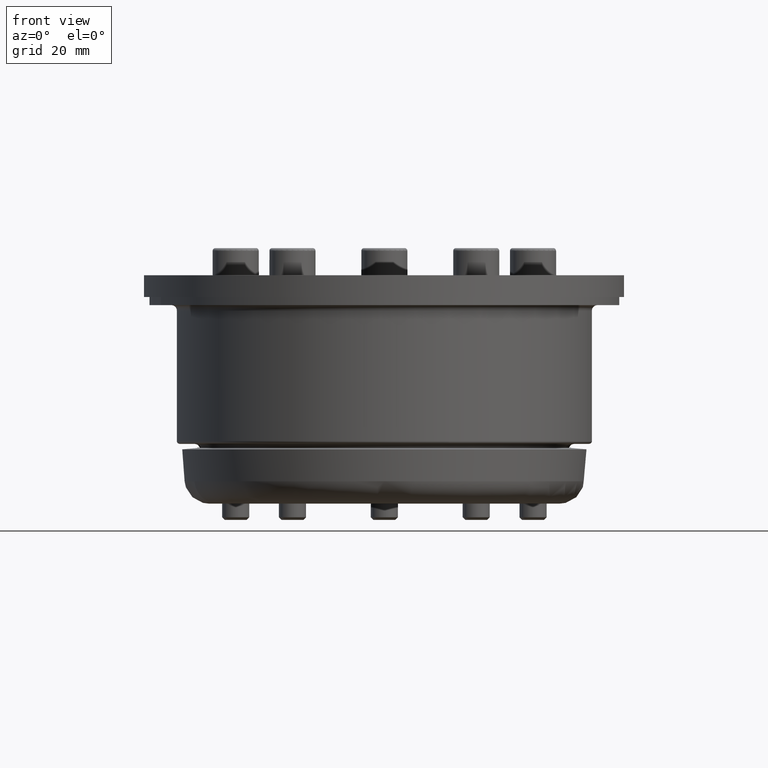
[diagram: clean part render]
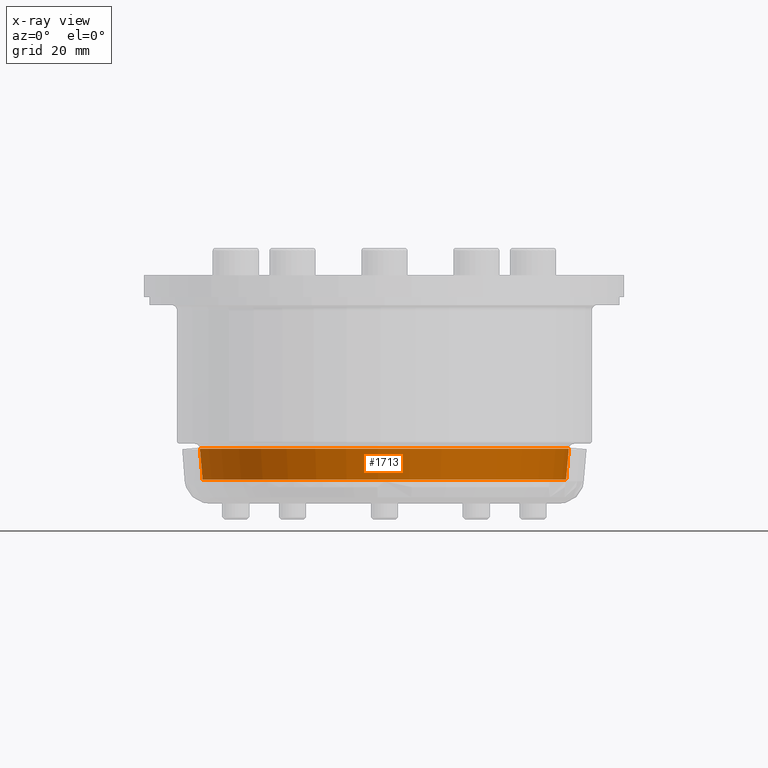
[diagram: x-ray — body ghosted, one internal face saturated and labeled with its STEP entity id]
A machine part, front view, then the same camera in x-ray: the body is ghosted and one INTERNAL B-rep face — a face not visible from any outside direction — is saturated and labeled: STEP entity #1713.
In plain terms, the highlighted conical surface has half-angle 5 deg.
Its self-contained STEP definition (entity closure, byte-faithful):
#80=CONICAL_SURFACE('',#1983,33.6981731800148,0.0872664625997158);
#107=LINE('',#2969,#178);
#178=VECTOR('',#2375,33.6981731800148);
#372=FACE_OUTER_BOUND('',#462,.T.);
#462=EDGE_LOOP('',(#1332,#1333,#1334,#1335,#1336,#1337,#1338));
#645=CIRCLE('',#1981,33.9463921441627);
#646=CIRCLE('',#1982,33.9463921441627);
#647=CIRCLE('',#1984,33.4461416461411);
#648=CIRCLE('',#1985,33.4461416461411);
#649=CIRCLE('',#1986,33.4461416461411);
#815=VERTEX_POINT('',#2962);
#816=VERTEX_POINT('',#2964);
#817=VERTEX_POINT('',#2968);
#818=VERTEX_POINT('',#2970);
#819=VERTEX_POINT('',#2972);
#1016=EDGE_CURVE('',#815,#816,#645,.T.);
#1017=EDGE_CURVE('',#816,#815,#646,.T.);
#1018=EDGE_CURVE('',#816,#817,#107,.T.);
#1019=EDGE_CURVE('',#818,#817,#647,.T.);
#1020=EDGE_CURVE('',#819,#818,#648,.T.);
#1021=EDGE_CURVE('',#817,#819,#649,.T.);
#1332=ORIENTED_EDGE('',*,*,#1017,.F.);
#1333=ORIENTED_EDGE('',*,*,#1018,.T.);
#1334=ORIENTED_EDGE('',*,*,#1019,.F.);
#1335=ORIENTED_EDGE('',*,*,#1020,.F.);
#1336=ORIENTED_EDGE('',*,*,#1021,.F.);
#1337=ORIENTED_EDGE('',*,*,#1018,.F.);
#1338=ORIENTED_EDGE('',*,*,#1016,.F.);
#1713=ADVANCED_FACE('',(#372),#80,.T.);
#1981=AXIS2_PLACEMENT_3D('',#2965,#2369,#2370);
#1982=AXIS2_PLACEMENT_3D('',#2966,#2371,#2372);
#1983=AXIS2_PLACEMENT_3D('',#2967,#2373,#2374);
#1984=AXIS2_PLACEMENT_3D('',#2971,#2376,#2377);
#1985=AXIS2_PLACEMENT_3D('',#2973,#2378,#2379);
#1986=AXIS2_PLACEMENT_3D('',#2974,#2380,#2381);
#2369=DIRECTION('center_axis',(0.,0.,1.));
#2370=DIRECTION('ref_axis',(6.12323399573677E-17,1.,0.));
#2371=DIRECTION('center_axis',(0.,0.,1.));
#2372=DIRECTION('ref_axis',(6.12323399573677E-17,1.,0.));
#2373=DIRECTION('center_axis',(0.,0.,1.));
#2374=DIRECTION('ref_axis',(0.,1.,0.));
#2375=DIRECTION('',(1.06735001383229E-17,0.0871557427476575,-0.996194698091746));
#2376=DIRECTION('center_axis',(0.,0.,-1.));
#2377=DIRECTION('ref_axis',(0.,-1.,0.));
#2378=DIRECTION('center_axis',(0.,0.,-1.));
#2379=DIRECTION('ref_axis',(0.,-1.,0.));
#2380=DIRECTION('center_axis',(0.,0.,-1.));
#2381=DIRECTION('ref_axis',(0.,-1.,0.));
#2962=CARTESIAN_POINT('',(33.9463921441627,-4.15723404819497E-15,7.08715574274768));
#2964=CARTESIAN_POINT('',(0.,-33.9463921441627,7.08715574274768));
#2965=CARTESIAN_POINT('Origin',(-2.07861702409749E-15,0.,7.08715574274768));
#2966=CARTESIAN_POINT('Origin',(-2.07861702409749E-15,0.,7.08715574274768));
#2967=CARTESIAN_POINT('Origin',(0.,0.,4.25000000000001));
#2968=CARTESIAN_POINT('',(-4.09597103107757E-15,-33.4461416461411,1.36926638587851));
#2969=CARTESIAN_POINT('',(-4.12683599220183E-15,-33.6981731800148,4.25000000000001));
#2970=CARTESIAN_POINT('',(33.4461416461411,-4.09597103107757E-15,1.36926638587851));
#2971=CARTESIAN_POINT('Origin',(-4.09597103107757E-15,0.,1.36926638587851));
#2972=CARTESIAN_POINT('',(0.,33.4461416461411,1.36926638587851));
#2973=CARTESIAN_POINT('Origin',(-4.09597103107757E-15,0.,1.36926638587851));
#2974=CARTESIAN_POINT('Origin',(-4.09597103107757E-15,0.,1.36926638587851));